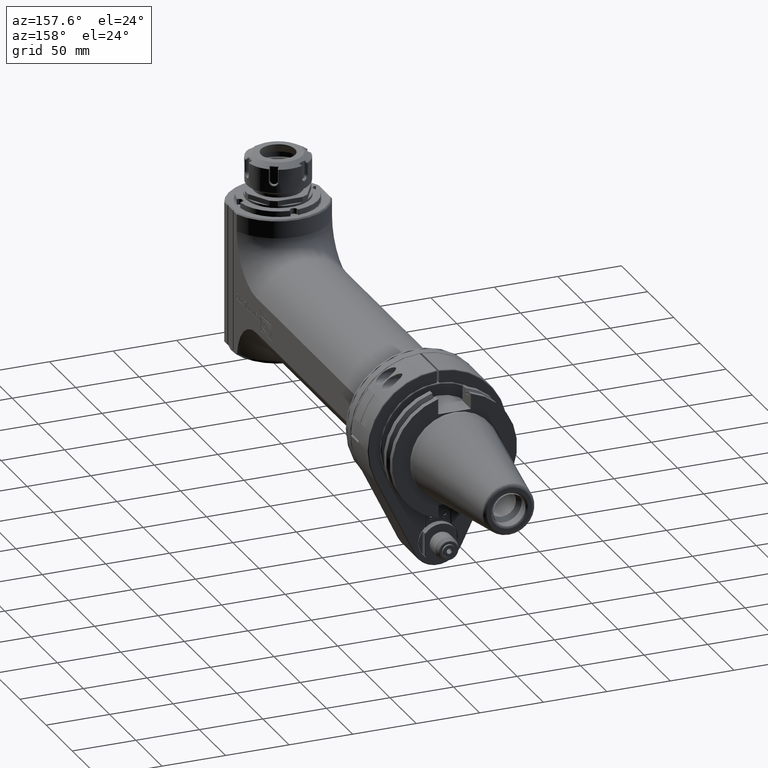
[diagram: clean part render]
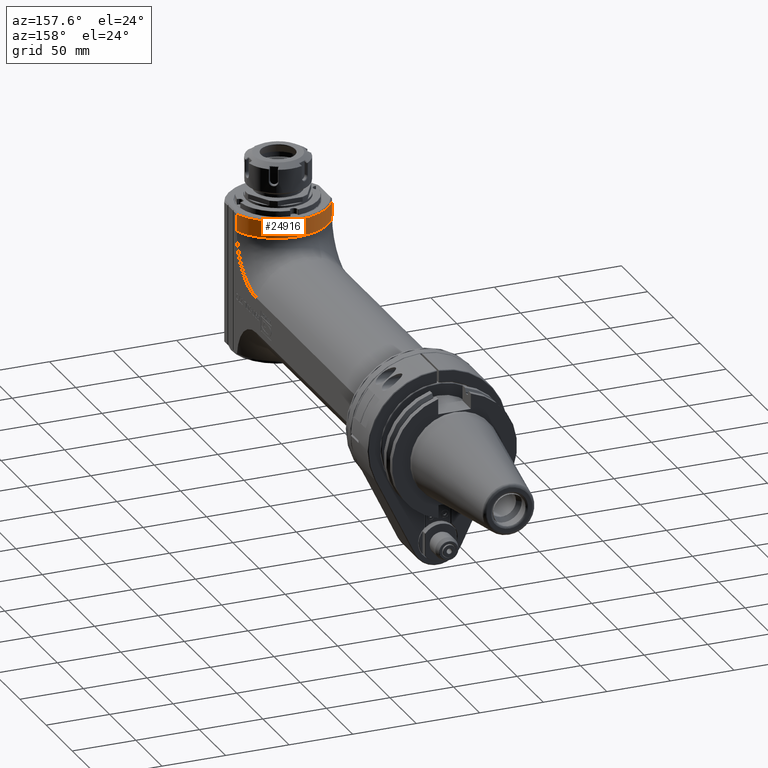
[diagram: same view with one face highlighted and labeled with its STEP entity id]
A machine part, auxiliary view. The second image highlights one B-rep face of the part: STEP entity #24916.
In plain terms, the highlighted cylindrical surface (partial cylindrical patch) has radius 40 mm, axis along (0, 0, 1).
Its self-contained STEP definition (entity closure, byte-faithful):
#947=LINE('',#37189,#3360);
#1033=LINE('',#37702,#3446);
#3360=VECTOR('',#29121,10.);
#3446=VECTOR('',#29519,10.);
#5737=CYLINDRICAL_SURFACE('',#26634,40.);
#6253=FACE_OUTER_BOUND('',#7744,.T.);
#7744=EDGE_LOOP('',(#17361,#17362,#17363,#17364));
#9237=CIRCLE('',#26486,40.);
#9317=CIRCLE('',#26635,40.);
#10200=VERTEX_POINT('',#37186);
#10201=VERTEX_POINT('',#37188);
#10217=VERTEX_POINT('',#37238);
#10312=VERTEX_POINT('',#37700);
#12776=EDGE_CURVE('',#10201,#10200,#947,.T.);
#12799=EDGE_CURVE('',#10200,#10217,#9237,.T.);
#12953=EDGE_CURVE('',#10312,#10217,#1033,.T.);
#13203=EDGE_CURVE('',#10201,#10312,#9317,.T.);
#17361=ORIENTED_EDGE('',*,*,#12799,.T.);
#17362=ORIENTED_EDGE('',*,*,#12953,.F.);
#17363=ORIENTED_EDGE('',*,*,#13203,.F.);
#17364=ORIENTED_EDGE('',*,*,#12776,.T.);
#24916=ADVANCED_FACE('',(#6253),#5737,.T.);
#26486=AXIS2_PLACEMENT_3D('',#37245,#29154,#29155);
#26634=AXIS2_PLACEMENT_3D('',#38201,#29769,#29770);
#26635=AXIS2_PLACEMENT_3D('',#38202,#29771,#29772);
#29121=DIRECTION('',(0.,0.,1.));
#29154=DIRECTION('center_axis',(0.,0.,-1.));
#29155=DIRECTION('ref_axis',(-0.937499999999992,0.347985272676897,0.));
#29519=DIRECTION('',(0.,0.,1.));
#29769=DIRECTION('center_axis',(0.,0.,1.));
#29770=DIRECTION('ref_axis',(-1.,0.,0.));
#29771=DIRECTION('center_axis',(0.,0.,-1.));
#29772=DIRECTION('ref_axis',(-0.937499999999992,0.347985272676897,0.));
#37186=CARTESIAN_POINT('',(-37.4999925842097,11.9194081033874,64.9999681096725));
#37188=CARTESIAN_POINT('',(-37.5,11.91941090708,51.5));
#37189=CARTESIAN_POINT('',(-37.5,11.9194109070751,66.));
#37238=CARTESIAN_POINT('',(37.4999945937787,11.9194015137866,64.9999725787882));
#37245=CARTESIAN_POINT('Origin',(-1.06581310364E-14,-2.,64.99991421941));
#37700=CARTESIAN_POINT('',(37.5,11.91941090708,51.5));
#37702=CARTESIAN_POINT('',(37.5,11.9194109070751,66.));
#38201=CARTESIAN_POINT('Origin',(0.,-2.,66.));
#38202=CARTESIAN_POINT('Origin',(0.,-2.,51.5));